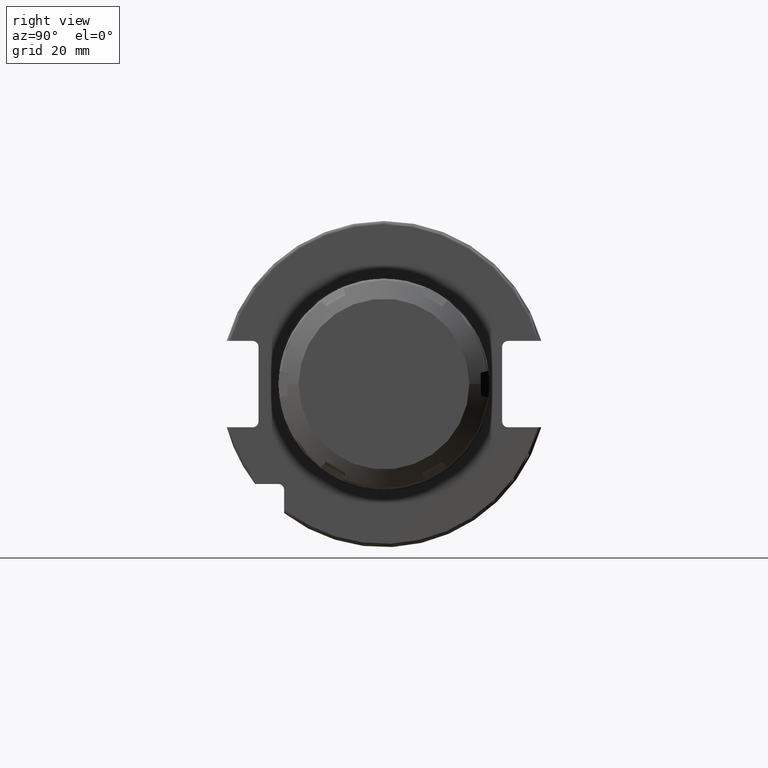
[diagram: clean part render]
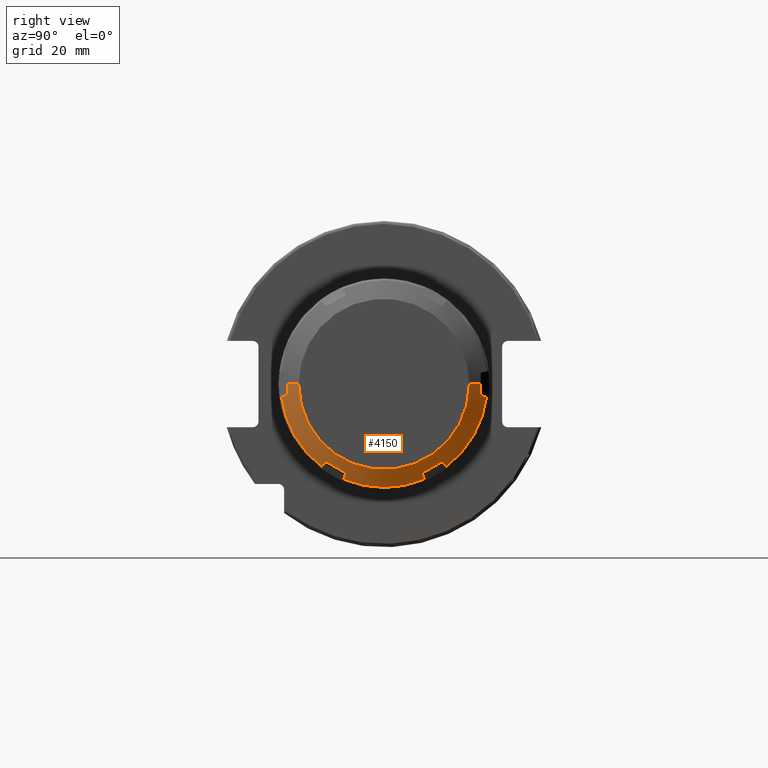
[diagram: same view with one face highlighted and labeled with its STEP entity id]
A machine part, right view. The second image highlights one B-rep face of the part: STEP entity #4150.
In plain terms, the highlighted conical surface has half-angle 60 deg.
Its self-contained STEP definition (entity closure, byte-faithful):
#3280=CARTESIAN_POINT('',(2.351130782476E1,1.727618510266E1,-2.322323035877E1));
#3281=CARTESIAN_POINT('',(2.332842823305E1,1.749804769833E1,-2.345297580209E1));
#3282=CARTESIAN_POINT('',(2.295978520802E1,1.794515018410E1,-2.391596397947E1));
#3283=CARTESIAN_POINT('',(2.258538211756E1,1.839901028735E1,-2.438594987460E1));
#3284=CARTESIAN_POINT('',(2.239674230313E1,1.862763043938E1,-2.462269297237E1));
#3286=CARTESIAN_POINT('',(2.351130782476E1,1.147381489730E1,-2.657323035877E1));
#3287=CARTESIAN_POINT('',(2.356105051412E1,1.211849164162E1,-2.620102606690E1));
#3288=CARTESIAN_POINT('',(2.362777625606E1,1.340784245763E1,-2.545661902620E1));
#3289=CARTESIAN_POINT('',(2.362777583851E1,1.534217003691E1,-2.433983447760E1));
#3290=CARTESIAN_POINT('',(2.356105010187E1,1.663151370114E1,-2.359543156598E1));
#3291=CARTESIAN_POINT('',(2.351130782476E1,1.727618510266E1,-2.322323035877E1));
#3293=CARTESIAN_POINT('',(2.239674230313E1,1.201006240397E1,-2.844334765900E1));
#3294=CARTESIAN_POINT('',(2.258533438069E1,1.191936989944E1,-2.812706530876E1));
#3295=CARTESIAN_POINT('',(2.295968976826E1,1.173930318813E1,-2.749909805885E1));
#3296=CARTESIAN_POINT('',(2.332838053240E1,1.156187195180E1,-2.688032180249E1));
#3297=CARTESIAN_POINT('',(2.351130782476E1,1.147381489730E1,-2.657323035877E1));
#3299=CARTESIAN_POINT('',(2.239674230313E1,0.E0,0.E0));
#3300=DIRECTION('',(-1.E0,0.E0,0.E0));
#3301=DIRECTION('',(0.E0,3.889898754327E-1,-9.212420294422E-1));
#3302=AXIS2_PLACEMENT_3D('',#3299,#3300,#3301);
#3304=CARTESIAN_POINT('',(2.351130782476E1,-1.147381489730E1,
-2.657323035877E1));
#3305=CARTESIAN_POINT('',(2.332842823305E1,-1.156184898978E1,
-2.688024172443E1));
#3306=CARTESIAN_POINT('',(2.295978520802E1,-1.173925727016E1,
-2.749893792389E1));
#3307=CARTESIAN_POINT('',(2.258538211756E1,-1.191934694315E1,
-2.812698525064E1));
#3308=CARTESIAN_POINT('',(2.239674230313E1,-1.201006240397E1,
-2.844334765900E1));
#3310=CARTESIAN_POINT('',(2.351130782476E1,-1.727618510266E1,
-2.322323035877E1));
#3311=CARTESIAN_POINT('',(2.356105051412E1,-1.663150835835E1,
-2.359543465064E1));
#3312=CARTESIAN_POINT('',(2.362777625606E1,-1.534215754233E1,
-2.433984169135E1));
#3313=CARTESIAN_POINT('',(2.362777583851E1,-1.340782996305E1,
-2.545662623995E1));
#3314=CARTESIAN_POINT('',(2.356105010187E1,-1.211848629883E1,
-2.620102915156E1));
#3315=CARTESIAN_POINT('',(2.351130782476E1,-1.147381489730E1,
-2.657323035877E1));
#3317=CARTESIAN_POINT('',(2.239674230313E1,-1.862763043938E1,
-2.462269297237E1));
#3318=CARTESIAN_POINT('',(2.258533438069E1,-1.839906814157E1,
-2.438600978440E1));
#3319=CARTESIAN_POINT('',(2.295968976826E1,-1.794526590606E1,
-2.391608381307E1));
#3320=CARTESIAN_POINT('',(2.332838053240E1,-1.749810556696E1,
-2.345303572681E1));
#3321=CARTESIAN_POINT('',(2.351130782476E1,-1.727618510266E1,
-2.322323035877E1));
#3323=CARTESIAN_POINT('',(2.239674230313E1,0.E0,0.E0));
#3324=DIRECTION('',(-1.E0,0.E0,0.E0));
#3325=DIRECTION('',(0.E0,-6.033240628145E-1,-7.974961286608E-1));
#3326=AXIS2_PLACEMENT_3D('',#3323,#3324,#3325);
#3328=CARTESIAN_POINT('',(2.351130782476E1,-2.874999999997E1,-3.35E0));
#3329=CARTESIAN_POINT('',(2.332842823305E1,-2.905989668812E1,
-3.427265922344E0));
#3330=CARTESIAN_POINT('',(2.295978520802E1,-2.968440745426E1,
-3.582973944421E0));
#3331=CARTESIAN_POINT('',(2.258538211756E1,-3.031835723049E1,
-3.741035376033E0));
#3332=CARTESIAN_POINT('',(2.239674230313E1,-3.063769284335E1,
-3.820654686622E0));
#3334=CARTESIAN_POINT('',(2.362361162515E1,-2.874999999997E1,0.E0));
#3335=CARTESIAN_POINT('',(2.362361162515E1,-2.874999999997E1,
-3.723033754199E-1));
#3336=CARTESIAN_POINT('',(2.361525781864E1,-2.874999999997E1,
-1.116855572672E0));
#3337=CARTESIAN_POINT('',(2.357773435590E1,-2.874999999997E1,
-2.233506677949E0));
#3338=CARTESIAN_POINT('',(2.353617556265E1,-2.874999999997E1,
-2.977849684408E0));
#3339=CARTESIAN_POINT('',(2.351130782476E1,-2.874999999997E1,-3.35E0));
#3341=DIRECTION('',(-5.E-1,-8.660254037844E-1,0.E0));
#3342=VECTOR('',#3341,3.752776749692E0);
#3343=CARTESIAN_POINT('',(2.55E1,-2.55E1,0.E0));
#3344=LINE('',#3343,#3342);
#3345=CARTESIAN_POINT('',(2.55E1,0.E0,0.E0));
#3346=DIRECTION('',(-1.E0,0.E0,0.E0));
#3347=DIRECTION('',(0.E0,1.E0,0.E0));
#3348=AXIS2_PLACEMENT_3D('',#3345,#3346,#3347);
#3350=DIRECTION('',(-5.E-1,8.660254037844E-1,0.E0));
#3351=VECTOR('',#3350,3.752776749692E0);
#3352=CARTESIAN_POINT('',(2.55E1,2.55E1,0.E0));
#3353=LINE('',#3352,#3351);
#3354=CARTESIAN_POINT('',(2.351130782476E1,2.874999999997E1,-3.35E0));
#3355=CARTESIAN_POINT('',(2.353617695757E1,2.874999999997E1,-2.977828809184E0));
#3356=CARTESIAN_POINT('',(2.357773662637E1,2.874999999997E1,-2.233458033279E0));
#3357=CARTESIAN_POINT('',(2.361525848375E1,2.874999999997E1,-1.116817767542E0));
#3358=CARTESIAN_POINT('',(2.362361162515E1,2.874999999997E1,
-3.722872262064E-1));
#3359=CARTESIAN_POINT('',(2.362361162515E1,2.874999999997E1,0.E0));
#3361=CARTESIAN_POINT('',(2.239674230313E1,3.063769284335E1,-3.820654686622E0));
#3362=CARTESIAN_POINT('',(2.258533438069E1,3.031843804101E1,-3.741055524357E0));
#3363=CARTESIAN_POINT('',(2.295968976826E1,2.968456909419E1,-3.583014245782E0));
#3364=CARTESIAN_POINT('',(2.332838053240E1,2.905997751876E1,-3.427286075687E0));
#3365=CARTESIAN_POINT('',(2.351130782476E1,2.874999999997E1,-3.35E0));
#3367=CARTESIAN_POINT('',(2.239674230313E1,0.E0,0.E0));
#3368=DIRECTION('',(-1.E0,0.E0,0.E0));
#3369=DIRECTION('',(0.E0,9.923139382473E-1,-1.237459007814E-1));
#3370=AXIS2_PLACEMENT_3D('',#3367,#3368,#3369);
#3631=CARTESIAN_POINT('',(2.362361162515E1,-2.874999999997E1,0.E0));
#3698=CARTESIAN_POINT('',(2.362361162515E1,2.874999999997E1,0.E0));
#3988=CARTESIAN_POINT('',(2.55E1,2.55E1,0.E0));
#3989=CARTESIAN_POINT('',(2.55E1,-2.55E1,0.E0));
#3990=VERTEX_POINT('',#3988);
#3991=VERTEX_POINT('',#3989);
#4002=VERTEX_POINT('',#3698);
#4003=VERTEX_POINT('',#3354);
#4004=VERTEX_POINT('',#3361);
#4057=VERTEX_POINT('',#3631);
#4059=VERTEX_POINT('',#3328);
#4060=VERTEX_POINT('',#3332);
#4070=VERTEX_POINT('',#3304);
#4071=VERTEX_POINT('',#3308);
#4072=VERTEX_POINT('',#3310);
#4073=VERTEX_POINT('',#3317);
#4085=VERTEX_POINT('',#3280);
#4086=VERTEX_POINT('',#3284);
#4087=VERTEX_POINT('',#3286);
#4088=VERTEX_POINT('',#3293);
#4112=CARTESIAN_POINT('',(2.394837115156E1,0.E0,0.E0));
#4113=DIRECTION('',(-1.E0,0.E0,0.E0));
#4114=DIRECTION('',(0.E0,1.E0,0.E0));
#4115=AXIS2_PLACEMENT_3D('',#4112,#4113,#4114);
#4116=CONICAL_SURFACE('',#4115,2.818749999998E1,6.E1);
#4118=ORIENTED_EDGE('',*,*,#4117,.F.);
#4120=ORIENTED_EDGE('',*,*,#4119,.F.);
#4122=ORIENTED_EDGE('',*,*,#4121,.F.);
#4124=ORIENTED_EDGE('',*,*,#4123,.T.);
#4126=ORIENTED_EDGE('',*,*,#4125,.F.);
#4128=ORIENTED_EDGE('',*,*,#4127,.F.);
#4130=ORIENTED_EDGE('',*,*,#4129,.F.);
#4132=ORIENTED_EDGE('',*,*,#4131,.T.);
#4134=ORIENTED_EDGE('',*,*,#4133,.F.);
#4136=ORIENTED_EDGE('',*,*,#4135,.F.);
#4138=ORIENTED_EDGE('',*,*,#4137,.F.);
#4139=ORIENTED_EDGE('',*,*,#4105,.F.);
#4141=ORIENTED_EDGE('',*,*,#4140,.T.);
#4143=ORIENTED_EDGE('',*,*,#4142,.F.);
#4145=ORIENTED_EDGE('',*,*,#4144,.F.);
#4147=ORIENTED_EDGE('',*,*,#4146,.T.);
#4148=EDGE_LOOP('',(#4118,#4120,#4122,#4124,#4126,#4128,#4130,#4132,#4134,#4136,
#4138,#4139,#4141,#4143,#4145,#4147));
#4149=FACE_OUTER_BOUND('',#4148,.F.);
#4150=ADVANCED_FACE('',(#4149),#4116,.T.);
#3285=B_SPLINE_CURVE_WITH_KNOTS('',3,(#3280,#3281,#3282,#3283,#3284),
.UNSPECIFIED.,.F.,.F.,(4,1,4),(0.E0,5.E-1,1.E0),.UNSPECIFIED.);
#3292=B_SPLINE_CURVE_WITH_KNOTS('',3,(#3286,#3287,#3288,#3289,#3290,#3291),
.UNSPECIFIED.,.F.,.F.,(4,1,1,4),(0.E0,3.333333333333E-1,6.666666666667E-1,1.E0),
.UNSPECIFIED.);
#3298=B_SPLINE_CURVE_WITH_KNOTS('',3,(#3293,#3294,#3295,#3296,#3297),
.UNSPECIFIED.,.F.,.F.,(4,1,4),(0.E0,5.E-1,1.E0),.UNSPECIFIED.);
#3303=CIRCLE('',#3302,3.087499999997E1);
#3309=B_SPLINE_CURVE_WITH_KNOTS('',3,(#3304,#3305,#3306,#3307,#3308),
.UNSPECIFIED.,.F.,.F.,(4,1,4),(0.E0,5.E-1,1.E0),.UNSPECIFIED.);
#3316=B_SPLINE_CURVE_WITH_KNOTS('',3,(#3310,#3311,#3312,#3313,#3314,#3315),
.UNSPECIFIED.,.F.,.F.,(4,1,1,4),(0.E0,3.333333333333E-1,6.666666666667E-1,1.E0),
.UNSPECIFIED.);
#3322=B_SPLINE_CURVE_WITH_KNOTS('',3,(#3317,#3318,#3319,#3320,#3321),
.UNSPECIFIED.,.F.,.F.,(4,1,4),(0.E0,5.E-1,1.E0),.UNSPECIFIED.);
#3327=CIRCLE('',#3326,3.087499999997E1);
#3333=B_SPLINE_CURVE_WITH_KNOTS('',3,(#3328,#3329,#3330,#3331,#3332),
.UNSPECIFIED.,.F.,.F.,(4,1,4),(0.E0,5.E-1,1.E0),.UNSPECIFIED.);
#3340=B_SPLINE_CURVE_WITH_KNOTS('',3,(#3334,#3335,#3336,#3337,#3338,#3339),
.UNSPECIFIED.,.F.,.F.,(4,1,1,4),(0.E0,3.333333333333E-1,6.666666666667E-1,1.E0),
.UNSPECIFIED.);
#3349=CIRCLE('',#3348,2.55E1);
#3360=B_SPLINE_CURVE_WITH_KNOTS('',3,(#3354,#3355,#3356,#3357,#3358,#3359),
.UNSPECIFIED.,.F.,.F.,(4,1,1,4),(0.E0,3.333333333333E-1,6.666666666667E-1,1.E0),
.UNSPECIFIED.);
#3366=B_SPLINE_CURVE_WITH_KNOTS('',3,(#3361,#3362,#3363,#3364,#3365),
.UNSPECIFIED.,.F.,.F.,(4,1,4),(0.E0,5.E-1,1.E0),.UNSPECIFIED.);
#3371=CIRCLE('',#3370,3.087499999997E1);
#4105=EDGE_CURVE('',#3990,#3991,#3349,.T.);
#4117=EDGE_CURVE('',#4085,#4086,#3285,.T.);
#4119=EDGE_CURVE('',#4087,#4085,#3292,.T.);
#4121=EDGE_CURVE('',#4088,#4087,#3298,.T.);
#4123=EDGE_CURVE('',#4088,#4071,#3303,.T.);
#4125=EDGE_CURVE('',#4070,#4071,#3309,.T.);
#4127=EDGE_CURVE('',#4072,#4070,#3316,.T.);
#4129=EDGE_CURVE('',#4073,#4072,#3322,.T.);
#4131=EDGE_CURVE('',#4073,#4060,#3327,.T.);
#4133=EDGE_CURVE('',#4059,#4060,#3333,.T.);
#4135=EDGE_CURVE('',#4057,#4059,#3340,.T.);
#4137=EDGE_CURVE('',#3991,#4057,#3344,.T.);
#4140=EDGE_CURVE('',#3990,#4002,#3353,.T.);
#4142=EDGE_CURVE('',#4003,#4002,#3360,.T.);
#4144=EDGE_CURVE('',#4004,#4003,#3366,.T.);
#4146=EDGE_CURVE('',#4004,#4086,#3371,.T.);